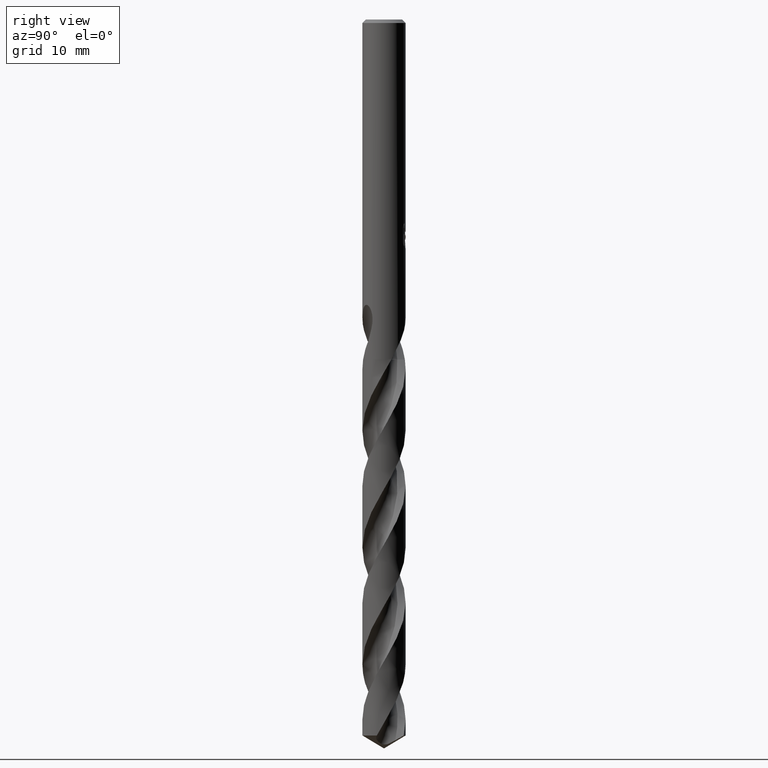
[diagram: clean part render]
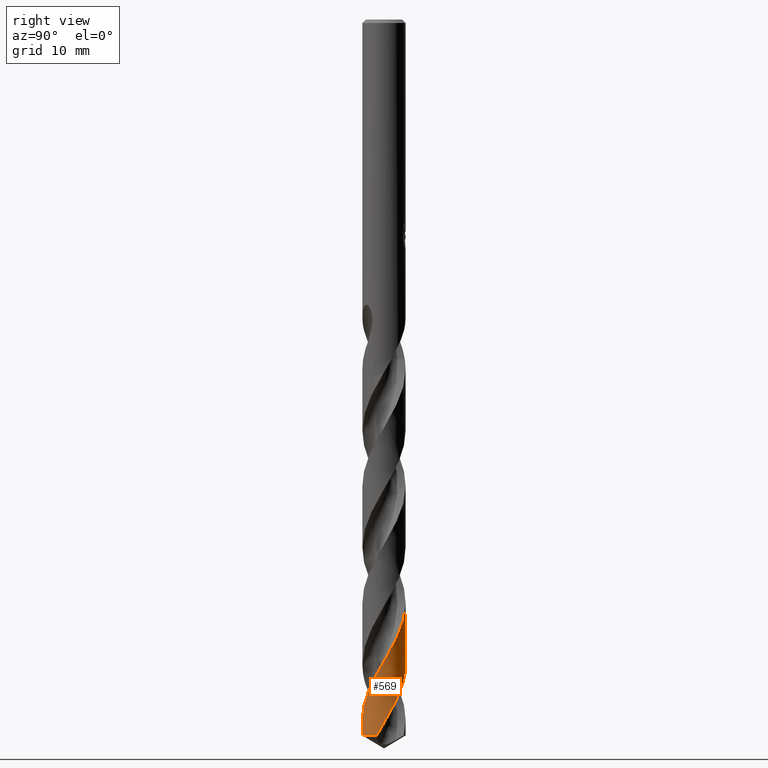
[diagram: same view with one face highlighted and labeled with its STEP entity id]
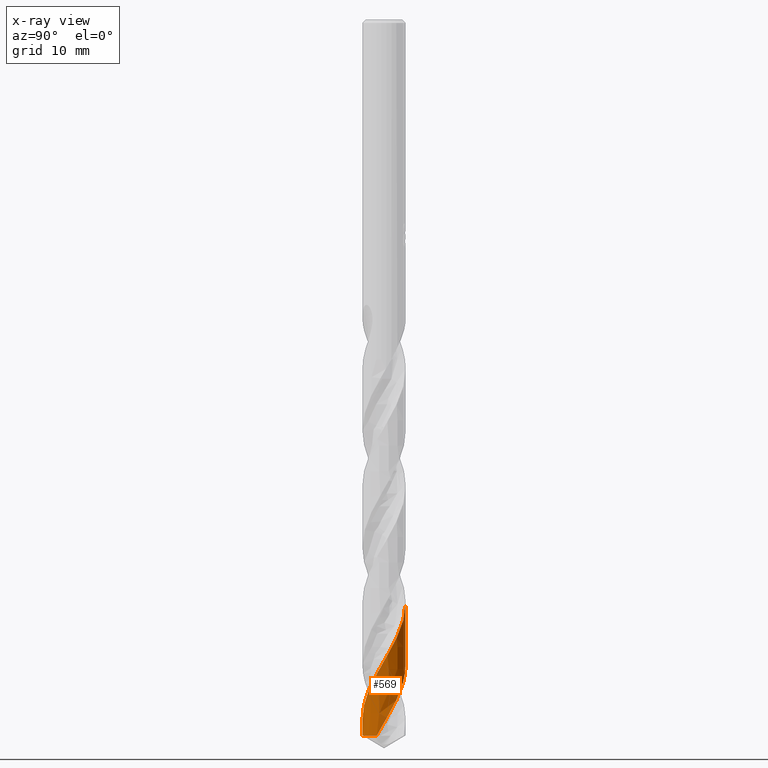
[diagram: x-ray of the same camera — body ghosted, the highlighted face saturated]
A machine part, right view. The second image highlights one B-rep face of the part: STEP entity #569.
The next image is the same camera in x-ray: the body ghosted, the highlighted face saturated — about 0% of this face is hidden behind the body in this view.
In plain terms, the highlighted conical surface has half-angle 0 deg.
Its self-contained STEP definition (entity closure, byte-faithful):
#297=EDGE_CURVE('',#449,#445,#836,.T.);
#347=EDGE_CURVE('',#399,#745,#891,.T.);
#399=VERTEX_POINT('',#948);
#445=VERTEX_POINT('',#1001);
#449=VERTEX_POINT('',#1005);
#495=EDGE_CURVE('',#449,#399,#1056,.T.);
#515=EDGE_CURVE('',#559,#745,#1079,.T.);
#559=VERTEX_POINT('',#1126);
#569=ADVANCED_FACE('',(#1136),#1137,.T.);
#605=EDGE_CURVE('',#559,#445,#1173,.T.);
#745=VERTEX_POINT('',#1325);
#836=B_SPLINE_CURVE_WITH_KNOTS('',3,(#1416,#1417,#1418,#1419,#1420,#1421,#1422,#1423,#1424,#1425,#1426,#1427,#1428,#1429,#1430,#1431,#1432,#1433,#1434,#1435,#1436,#1437,#1438,#1439,#1440,#1441,#1442,#1443,#1444,#1445,#1446,#1447,#1448,#1449,#1450,#1451,#1452,#1453,#1454,#1455,#1456,#1457,#1458,#1459,#1460,#1461,#1462,#1463,#1464,#1465,#1466,#1467,#1468,#1469,#1470,#1471,#1472,#1473,#1474,#1475,#1476,#1477,#1478,#1479,#1480,#1481,#1482,#1483,#1484,#1485,#1486,#1487,#1488,#1489,#1490,#1491,#1492,#1493,#1494,#1495,#1496,#1497,#1498,#1499,#1500,#1501,#1502,#1503,#1504,#1505,#1506,#1507,#1508,#1509,#1510,#1511,#1512,#1513,#1514,#1515,#1516,#1517,#1518,#1519,#1520,#1521,#1522,#1523,#1524,#1525,#1526,#1527,#1528,#1529,#1530,#1531,#1532,#1533,#1534,#1535,#1536,#1537,#1538,#1539,#1540,#1541,#1542,#1543,#1544,#1545,#1546,#1547,#1548,#1549,#1550,#1551,#1552,#1553,#1554,#1555,#1556,#1557,#1558,#1559),.UNSPECIFIED.,.F.,.F.,(4,2,2,2,2,2,2,2,2,2,2,2,2,2,2,2,2,2,2,2,2,2,2,2,2,2,2,2,2,2,2,2,2,2,2,2,2,2,2,2,2,2,2,2,2,2,2,2,2,2,2,2,2,2,2,2,2,2,2,2,2,2,2,2,2,2,2,2,2,2,2,4),(0.0,0.876116040993767,1.31109187851741,2.17221227104508,3.14388471818993,3.98175084664218,4.95334112541047,5.34108154182567,6.44273455704728,7.3055037147545,8.16721984664781,9.03145202170279,9.89325793211463,10.2610489207285,10.617515770084,12.0335996438863,12.380291765753,13.2506251567102,13.6867404491884,14.1194145274073,15.5468218495102,15.8876449758391,17.3560791439399,17.5017961841994,18.565969851226,19.433590779914,20.2400637461282,20.6759499429603,21.0643304414191,22.1990084732669,22.8963955313643,23.6637645560189,24.1503350697181,24.5520263071458,25.6307378967164,26.4999821585257,27.3656636331637,28.236447043743,29.1023432314611,29.9746360759997,30.8387259365157,31.7126074984112,32.5487405169182,32.9454907946239,33.338656048356,34.450810763582,35.1704138854551,36.658346808231,36.8049861248429,37.8879141341318,38.2745329260685,38.6523285539203,40.0354705797287,40.416244151164,41.7888865006707,42.1789198129637,43.3391103376038,44.0259498215276,44.8007890340576,45.235944924912,46.03538233339,46.7476286433306,47.9949532095645,48.9352171188026,49.2863911304343,50.5222957077088,51.1401910465104,51.4527082704027,51.6089334223101,51.6869549669427,51.7259365824883,51.7649345957086),.UNSPECIFIED.);
#891=LINE('',#2186,#2187);
#948=CARTESIAN_POINT('',(3.12274620224706E-016,-2.55,-84.4678054214797));
#1001=CARTESIAN_POINT('',(-7.26157705370439E-015,2.54998110362127,-76.0838968715577));
#1005=CARTESIAN_POINT('',(2.40472471601859,-0.848409712443987,-84.4678054214797));
#1056=CIRCLE('',#5935,2.55);
#1079=B_SPLINE_CURVE_WITH_KNOTS('',3,(#6061,#6062,#6063,#6064,#6065,#6066,#6067,#6068,#6069,#6070,#6071,#6072,#6073,#6074,#6075,#6076,#6077,#6078,#6079,#6080,#6081,#6082,#6083,#6084,#6085,#6086,#6087,#6088,#6089,#6090,#6091,#6092,#6093,#6094,#6095,#6096,#6097,#6098,#6099,#6100,#6101,#6102,#6103,#6104,#6105,#6106,#6107,#6108,#6109,#6110,#6111,#6112,#6113,#6114,#6115,#6116,#6117,#6118,#6119,#6120,#6121,#6122,#6123,#6124,#6125,#6126,#6127,#6128,#6129,#6130,#6131,#6132,#6133,#6134,#6135,#6136,#6137,#6138,#6139,#6140,#6141,#6142,#6143,#6144,#6145,#6146,#6147,#6148,#6149,#6150,#6151,#6152,#6153,#6154,#6155,#6156,#6157,#6158,#6159,#6160,#6161,#6162,#6163,#6164,#6165,#6166,#6167,#6168,#6169,#6170,#6171,#6172,#6173,#6174,#6175,#6176,#6177,#6178,#6179,#6180,#6181,#6182,#6183,#6184,#6185,#6186),.UNSPECIFIED.,.F.,.F.,(4,2,2,2,2,2,2,2,2,2,2,2,2,2,2,2,2,2,2,2,2,2,2,2,2,2,2,2,2,2,2,2,2,2,2,2,2,2,2,2,2,2,2,2,2,2,2,2,2,2,2,2,2,2,2,2,2,2,2,2,2,2,4),(0.0,0.0306110248028829,0.602073985706346,1.51849139507712,2.29795400160564,2.96630505725285,4.25768011506694,4.4770894326917,6.05637747270346,6.15922037400864,7.65932839369511,8.13973283909698,9.20122349906755,9.84685680363498,10.8494675752767,11.6298686362992,12.7031976930521,13.7295088994042,14.6968179048057,14.9173302837672,16.5106462493135,16.6131330381006,18.1238920480967,18.5894015305588,19.6561444095276,20.2904735208778,21.2936985975392,22.0706498086217,23.1473589523201,24.1722377947309,25.1390425617313,25.3581838683691,26.9500039154006,27.0523616422054,28.5653463163775,29.0281227405924,30.1046936401403,31.1289135078367,32.0951958359042,32.3140958602575,33.9061137746095,34.0082494299029,35.5229398361072,35.9831995969831,37.0625391454362,37.6728891989963,38.5758751320517,39.5449630279457,40.8128155392398,41.025211639974,41.8573628750507,42.3484483669402,42.8897056618765,43.8961251403428,44.6565969793751,45.7178559670194,46.3604893559337,47.3580472705361,47.6018985877734,48.0536145155955,48.8542978327662,50.065776955514,51.2758336616005),.UNSPECIFIED.);
#1126=CARTESIAN_POINT('',(6.55815330237238E-012,2.54996472678771,-68.8178552265747));
#1136=FACE_OUTER_BOUND('',#6390,.T.);
#1137=CONICAL_SURFACE('',#6391,2.54995,2.25388655242409E-006);
#1173=LINE('',#6628,#6629);
#1325=CARTESIAN_POINT('',(2.0584227163247E-014,-2.54999580361675,-82.6059622653028));
#1416=CARTESIAN_POINT('',(2.40472471601859,-0.848409712443992,-84.4678054214797));
#1417=CARTESIAN_POINT('',(2.4532386810248,-0.710900460394223,-84.2147754003168));
#1418=CARTESIAN_POINT('',(2.49002509025799,-0.569051693800341,-83.9632878887699));
#1419=CARTESIAN_POINT('',(2.52657791479786,-0.352428711000677,-83.5856123029491));
#1420=CARTESIAN_POINT('',(2.53561618275435,-0.280084944590474,-83.4604903092121));
#1421=CARTESIAN_POINT('',(2.55327854816494,-0.0637038394174159,-83.0870997575142));
#1422=CARTESIAN_POINT('',(2.55279907624535,0.0807424752273654,-82.8382276158718));
#1423=CARTESIAN_POINT('',(2.52576227269383,0.386666052372392,-82.3102280043488));
#1424=CARTESIAN_POINT('',(2.49593476124341,0.547012403429,-82.0320809766597));
#1425=CARTESIAN_POINT('',(2.41241280659725,0.838087440897922,-81.5106287477022));
#1426=CARTESIAN_POINT('',(2.36267830539077,0.969504330770324,-81.2681377546791));
#1427=CARTESIAN_POINT('',(2.23228080021877,1.24334318606825,-80.7465894013487));
#1428=CARTESIAN_POINT('',(2.14838917644426,1.38322649097756,-80.4683943601016));
#1429=CARTESIAN_POINT('',(2.01331910343362,1.56627144600696,-80.0764349779887));
#1430=CARTESIAN_POINT('',(1.97287729556282,1.61690909944353,-79.9643825961267));
#1431=CARTESIAN_POINT('',(1.81040525319798,1.80519056402204,-79.5352758482351));
#1432=CARTESIAN_POINT('',(1.67538940944156,1.93119505911948,-79.2206451677884));
#1433=CARTESIAN_POINT('',(1.41211616468274,2.12819577740997,-78.6553834232116));
#1434=CARTESIAN_POINT('',(1.28950145032511,2.20463357908687,-78.4061237691297));
#1435=CARTESIAN_POINT('',(1.03289522984958,2.33587119156247,-77.9099170519858));
#1436=CARTESIAN_POINT('',(0.899284596377507,2.39050135644141,-77.6633051022566));
#1437=CARTESIAN_POINT('',(0.623688132752266,2.47675967697949,-77.1669495388463));
#1438=CARTESIAN_POINT('',(0.482451546661361,2.50808428833626,-76.9174299611575));
#1439=CARTESIAN_POINT('',(0.196747994510775,2.54645125675874,-76.4210670173414));
#1440=CARTESIAN_POINT('',(0.0526504781526859,2.55350781254899,-76.174573176053));
#1441=CARTESIAN_POINT('',(-0.152838145122059,2.54613901504033,-75.8211911993042));
#1442=CARTESIAN_POINT('',(-0.214121894352937,2.54171478614789,-75.7155511974617));
#1443=CARTESIAN_POINT('',(-0.33421216894171,2.52868225075577,-75.5072154439243));
#1444=CARTESIAN_POINT('',(-0.393003986489377,2.52021430882074,-75.4044820365158));
#1445=CARTESIAN_POINT('',(-0.684040160476999,2.46785105186006,-74.8944904047045));
#1446=CARTESIAN_POINT('',(-0.909476550013433,2.3939436104179,-74.4928188154568));
#1447=CARTESIAN_POINT('',(-1.17339331213147,2.2647004100592,-73.9858160094437));
#1448=CARTESIAN_POINT('',(-1.22437523157237,2.23755037882282,-73.8859198016449));
#1449=CARTESIAN_POINT('',(-1.40030410323113,2.13602957739435,-73.535649593397));
#1450=CARTESIAN_POINT('',(-1.51984669238653,2.05271910547606,-73.2865531485259));
#1451=CARTESIAN_POINT('',(-1.68787030709777,1.9127960398389,-72.9109863067222));
#1452=CARTESIAN_POINT('',(-1.74186000463285,1.86375729421942,-72.7857444044991));
#1453=CARTESIAN_POINT('',(-1.84496407230394,1.76172894830975,-72.5357861996346));
#1454=CARTESIAN_POINT('',(-1.89405397901246,1.70883820605258,-72.4109934028619));
#1455=CARTESIAN_POINT('',(-2.09526134572711,1.47272099439977,-71.8760063895225));
#1456=CARTESIAN_POINT('',(-2.22343580403524,1.27092476659151,-71.4713485568897));
#1457=CARTESIAN_POINT('',(-2.34525719302661,1.00266563229554,-70.962919804167));
#1458=CARTESIAN_POINT('',(-2.36699595441618,0.950216545066971,-70.8647446744845));
#1459=CARTESIAN_POINT('',(-2.47324352718843,0.667462209232329,-70.3439451049161));
#1460=CARTESIAN_POINT('',(-2.5258479048837,0.426984946145117,-69.9276515818826));
#1461=CARTESIAN_POINT('',(-2.54514090067931,0.158666555366492,-69.4630067431907));
#1462=CARTESIAN_POINT('',(-2.54653538412849,0.13444613005349,-69.4210513513188));
#1463=CARTESIAN_POINT('',(-2.55525557157086,-0.067247077630529,-69.0724345774812));
#1464=CARTESIAN_POINT('',(-2.54439134733098,-0.245242614897038,-68.7683037527894));
#1465=CARTESIAN_POINT('',(-2.49098691504064,-0.564272246786445,-68.2125640321992));
#1466=CARTESIAN_POINT('',(-2.45482755397482,-0.705053602535103,-67.9621269551545));
#1467=CARTESIAN_POINT('',(-2.36259485985878,-0.968796885728333,-67.4806248487244));
#1468=CARTESIAN_POINT('',(-2.30812569176559,-1.09227286190446,-67.2497810207445));
#1469=CARTESIAN_POINT('',(-2.20942204530931,-1.27517429283323,-66.8927986441361));
#1470=CARTESIAN_POINT('',(-2.17209683507086,-1.3377530968861,-66.767678532583));
#1471=CARTESIAN_POINT('',(-2.09665041732777,-1.45277381844983,-66.5306368152414));
#1472=CARTESIAN_POINT('',(-2.05910799143696,-1.50550686822112,-66.4186997437579));
#1473=CARTESIAN_POINT('',(-1.9042456361639,-1.70641429264692,-65.981022736512));
#1474=CARTESIAN_POINT('',(-1.77248563745465,-1.84294708579919,-65.6579537800992));
#1475=CARTESIAN_POINT('',(-1.53696633489635,-2.03802947439231,-65.1321097240815));
#1476=CARTESIAN_POINT('',(-1.44246983020122,-2.10595043034292,-64.931240984793));
#1477=CARTESIAN_POINT('',(-1.23529266096229,-2.23442003334736,-64.5110149517685));
#1478=CARTESIAN_POINT('',(-1.12171412013592,-2.29356154128819,-64.291822073748));
#1479=CARTESIAN_POINT('',(-0.929358882729272,-2.37595229195995,-63.9324636235773));
#1480=CARTESIAN_POINT('',(-0.853321589787818,-2.40430175319518,-63.7932117429387));
#1481=CARTESIAN_POINT('',(-0.712453749021909,-2.44931451023442,-63.5384484412624));
#1482=CARTESIAN_POINT('',(-0.648078296563633,-2.46712414423728,-63.4229717413454));
#1483=CARTESIAN_POINT('',(-0.408773557653087,-2.5233392270084,-62.9987848626311));
#1484=CARTESIAN_POINT('',(-0.230364773395739,-2.54586711054035,-62.6922621338002));
#1485=CARTESIAN_POINT('',(0.0939027703588288,-2.55232672932321,-62.1348339469558));
#1486=CARTESIAN_POINT('',(0.238387285165763,-2.54288629765584,-61.8851238962532));
#1487=CARTESIAN_POINT('',(0.523407613845133,-2.49979346059872,-61.3886840526278));
#1488=CARTESIAN_POINT('',(0.663643662865771,-2.46628416574482,-61.1423139611416));
#1489=CARTESIAN_POINT('',(0.937976645410595,-2.37558832486354,-60.6457710325011));
#1490=CARTESIAN_POINT('',(1.07123298573445,-2.3185292926051,-60.3958322410914));
#1491=CARTESIAN_POINT('',(1.32567600812914,-2.18299375158226,-59.8992672226385));
#1492=CARTESIAN_POINT('',(1.44669320730439,-2.10476191382086,-59.6530226348176));
#1493=CARTESIAN_POINT('',(1.6752639523,-1.92788389933655,-59.1563971802712));
#1494=CARTESIAN_POINT('',(1.78203215183472,-1.82961549051097,-58.9062642280375));
#1495=CARTESIAN_POINT('',(1.97659772139744,-1.61734210055116,-58.4102103953696));
#1496=CARTESIAN_POINT('',(2.06442569862409,-1.5036465574269,-58.1646843966414));
#1497=CARTESIAN_POINT('',(2.22103287298956,-1.26106440173032,-57.6685792590081));
#1498=CARTESIAN_POINT('',(2.28910855997045,-1.13275048074143,-57.4182607396593));
#1499=CARTESIAN_POINT('',(2.40014160217653,-0.872172732061281,-56.930215011551));
#1500=CARTESIAN_POINT('',(2.4440160430249,-0.740425004403602,-56.6927861963137));
#1501=CARTESIAN_POINT('',(2.49261874345611,-0.541632390850395,-56.3412315412305));
#1502=CARTESIAN_POINT('',(2.50575724738831,-0.477151161676348,-56.2281876673911));
#1503=CARTESIAN_POINT('',(2.52690917495241,-0.348055134060328,-56.0027688324689));
#1504=CARTESIAN_POINT('',(2.53495665911914,-0.283526684144182,-55.8903202956105));
#1505=CARTESIAN_POINT('',(2.55629982638175,-0.0356910657832676,-55.4610907372662));
#1506=CARTESIAN_POINT('',(2.55224850863403,0.148778305710132,-55.1467358255261));
#1507=CARTESIAN_POINT('',(2.51280310344889,0.44965379225824,-54.6250792420004));
#1508=CARTESIAN_POINT('',(2.48905684404368,0.566447093824022,-54.4194537344146));
#1509=CARTESIAN_POINT('',(2.39174148364488,0.917634822445658,-53.791122802462));
#1510=CARTESIAN_POINT('',(2.29237210888609,1.1433666148949,-53.3740481922531));
#1511=CARTESIAN_POINT('',(2.14963600186759,1.37178211302277,-52.9087824751));
#1512=CARTESIAN_POINT('',(2.13655138880577,1.3920742912702,-52.8670285590128));
#1513=CARTESIAN_POINT('',(2.0241435289723,1.56106693593611,-52.5165592100388));
#1514=CARTESIAN_POINT('',(1.90961749890863,1.69931290248887,-52.2104347688493));
#1515=CARTESIAN_POINT('',(1.73544402815571,1.86934728611773,-51.7922211937236));
#1516=CARTESIAN_POINT('',(1.68800874896073,1.91228404981403,-51.6822713434605));
#1517=CARTESIAN_POINT('',(1.59125556931801,1.99347006652426,-51.4645473295828));
#1518=CARTESIAN_POINT('',(1.54205694729314,2.03176457536342,-51.3567190562544));
#1519=CARTESIAN_POINT('',(1.30633679869652,2.20175029049351,-50.8553652186638));
#1520=CARTESIAN_POINT('',(1.10412809161793,2.30979064919969,-50.466790805664));
#1521=CARTESIAN_POINT('',(0.831291353059098,2.41143284072693,-49.9649157633622));
#1522=CARTESIAN_POINT('',(0.77169872409261,2.43115663508028,-49.8563491732409));
#1523=CARTESIAN_POINT('',(0.494153354998057,2.51179245458498,-49.3577101967778));
#1524=CARTESIAN_POINT('',(0.269452732171157,2.545725331726,-48.9724421237366));
#1525=CARTESIAN_POINT('',(-0.0211609715298172,2.55064203249824,-48.4715320643955));
#1526=CARTESIAN_POINT('',(-0.0853793256354447,2.54929728806812,-48.3604520351222));
#1527=CARTESIAN_POINT('',(-0.340099943444027,2.53433982172477,-47.9202093462496));
#1528=CARTESIAN_POINT('',(-0.529044324132785,2.50176174533095,-47.5938260921823));
#1529=CARTESIAN_POINT('',(-0.821565436241674,2.41659592309235,-47.0699083759034));
#1530=CARTESIAN_POINT('',(-0.927945049154141,2.37776065326036,-46.874405644572));
#1531=CARTESIAN_POINT('',(-1.14779986158173,2.28053887642081,-46.4599910642844));
#1532=CARTESIAN_POINT('',(-1.26046772990333,2.22027235688089,-46.2412587923522));
#1533=CARTESIAN_POINT('',(-1.42884750021558,2.11319693273264,-45.8985700298963));
#1534=CARTESIAN_POINT('',(-1.48769398533692,2.07218544007213,-45.7754578537114));
#1535=CARTESIAN_POINT('',(-1.64938150447457,1.94907876283829,-45.4255833119315));
#1536=CARTESIAN_POINT('',(-1.74774265025712,1.86139621308389,-45.1980954022262));
#1537=CARTESIAN_POINT('',(-1.92028977519741,1.68175621333973,-44.7696344644597));
#1538=CARTESIAN_POINT('',(-1.99567567660071,1.59157610079635,-44.5684966313045));
#1539=CARTESIAN_POINT('',(-2.18531465575014,1.32994028015386,-44.0132889148575));
#1540=CARTESIAN_POINT('',(-2.28536800705351,1.14952502761946,-43.6586253573558));
#1541=CARTESIAN_POINT('',(-2.4209990852489,0.815361915083321,-43.0387939958776));
#1542=CARTESIAN_POINT('',(-2.46600883799987,0.666883533267958,-42.7738786191654));
#1543=CARTESIAN_POINT('',(-2.50894084688096,0.458876815887821,-42.4076938146289));
#1544=CARTESIAN_POINT('',(-2.51868503687809,0.401971871770063,-42.3079040530698));
#1545=CARTESIAN_POINT('',(-2.5539938646654,0.143171558471098,-41.8577412624356));
#1546=CARTESIAN_POINT('',(-2.55727099420712,-0.0608431071008394,-41.511293638643));
#1547=CARTESIAN_POINT('',(-2.52581110300024,-0.364155468127701,-40.9856525500252));
#1548=CARTESIAN_POINT('',(-2.50935371723795,-0.464135824827021,-40.8098361189199));
#1549=CARTESIAN_POINT('',(-2.47564305714888,-0.613038593611845,-40.5463391879914));
#1550=CARTESIAN_POINT('',(-2.46278828212811,-0.662813743000996,-40.4579145298509));
#1551=CARTESIAN_POINT('',(-2.44120343878329,-0.737008548775577,-40.3253712653669));
#1552=CARTESIAN_POINT('',(-2.43362680215999,-0.7616554904772,-40.2812172698858));
#1553=CARTESIAN_POINT('',(-2.42169204149801,-0.798476800953712,-40.2150348172184));
#1554=CARTESIAN_POINT('',(-2.41762156720078,-0.810717982046423,-40.1929960563352));
#1555=CARTESIAN_POINT('',(-2.41137443892189,-0.829038964469121,-40.1599522789228));
#1556=CARTESIAN_POINT('',(-2.40926933672859,-0.835136800251802,-40.1489443503188));
#1557=CARTESIAN_POINT('',(-2.40501071213083,-0.84732252921953,-40.1269259909009));
#1558=CARTESIAN_POINT('',(-2.40285902794588,-0.85340509114145,-40.1159263466438));
#1559=CARTESIAN_POINT('',(-2.40068594128376,-0.859474885059428,-40.1049350620338));
#2186=CARTESIAN_POINT('',(3.12241411148327E-016,-2.54995,-62.2839027107399));
#2187=VECTOR('',#12641,1.0);
#5935=AXIS2_PLACEMENT_3D('',#12838,#12839,#12840);
#6061=CARTESIAN_POINT('',(-0.65341679781216,2.46475892348229,-40.1045716875792));
#6062=CARTESIAN_POINT('',(-0.648458361632991,2.46607344400291,-40.1133921710479));
#6063=CARTESIAN_POINT('',(-0.643495828340949,2.46737303524251,-40.1222116584224));
#6064=CARTESIAN_POINT('',(-0.545822364642474,2.49263713870363,-40.2956598554575));
#6065=CARTESIAN_POINT('',(-0.451840487163871,2.5113746776104,-40.4600238045892));
#6066=CARTESIAN_POINT('',(-0.204993308700517,2.54628254242042,-40.888665057937));
#6067=CARTESIAN_POINT('',(-0.0514680199460076,2.55398547833597,-41.1526343248684));
#6068=CARTESIAN_POINT('',(0.231922677289231,2.54267817433136,-41.6414231428311));
#6069=CARTESIAN_POINT('',(0.361679266635818,2.52749705485492,-41.8657154814551));
#6070=CARTESIAN_POINT('',(0.599651658035964,2.48091985876965,-42.2827962743044));
#6071=CARTESIAN_POINT('',(0.70793566487888,2.4522157125642,-42.4749252629138));
#6072=CARTESIAN_POINT('',(1.01883021184261,2.34749667878688,-43.0396279405808));
#6073=CARTESIAN_POINT('',(1.21414642103409,2.25269856240043,-43.4103329002631));
#6074=CARTESIAN_POINT('',(1.42593329450892,2.11426052035174,-43.8456145995378));
#6075=CARTESIAN_POINT('',(1.456244544939,2.0934982377249,-43.9088077026734));
#6076=CARTESIAN_POINT('',(1.70094544282121,1.91800134020056,-44.4271656665863));
#6077=CARTESIAN_POINT('',(1.89063285309896,1.73134505974469,-44.8801123386739));
#6078=CARTESIAN_POINT('',(2.05849049392861,1.5049798230434,-45.3648346305514));
#6079=CARTESIAN_POINT('',(2.06861099271073,1.49103863509053,-45.3944639627523));
#6080=CARTESIAN_POINT('',(2.22414392608639,1.27215747077896,-45.8564492856804));
#6081=CARTESIAN_POINT('',(2.33866742504613,1.04684588347302,-46.2873099627802));
#6082=CARTESIAN_POINT('',(2.44388945698712,0.732087901775787,-46.8581779875544));
#6083=CARTESIAN_POINT('',(2.46577208758879,0.654605459201256,-46.9965329306637));
#6084=CARTESIAN_POINT('',(2.5241195183453,0.403098042426034,-47.4411200605081));
#6085=CARTESIAN_POINT('',(2.54608990862734,0.226153565967311,-47.7465631750759));
#6086=CARTESIAN_POINT('',(2.55151034338653,-0.0598677814278978,-48.2386940212721));
#6087=CARTESIAN_POINT('',(2.54667351107565,-0.16802237436684,-48.4244671120122));
#6088=CARTESIAN_POINT('',(2.5168482513115,-0.442449056102212,-48.8997584317135));
#6089=CARTESIAN_POINT('',(2.4822542443105,-0.607238300588726,-49.188414434435));
#6090=CARTESIAN_POINT('',(2.39232431387747,-0.8921816772695,-49.7024967689706));
#6091=CARTESIAN_POINT('',(2.34344143418987,-1.01364130306008,-49.9269312217318));
#6092=CARTESIAN_POINT('',(2.20576215023867,-1.29191238782971,-50.4615463066468));
#6093=CARTESIAN_POINT('',(2.10919502009655,-1.4442210080275,-50.7704327288788));
#6094=CARTESIAN_POINT('',(1.89042391455556,-1.71988629800994,-51.3758440658198));
#6095=CARTESIAN_POINT('',(1.77016633987451,-1.84341514263623,-51.6710489371554));
#6096=CARTESIAN_POINT('',(1.51432427132389,-2.05795953082557,-52.2460535455088));
#6097=CARTESIAN_POINT('',(1.38049833841782,-2.15003455009721,-52.5242827252449));
#6098=CARTESIAN_POINT('',(1.2064634559572,-2.24676411679465,-52.8667654754489));
#6099=CARTESIAN_POINT('',(1.17377636088141,-2.2640123594358,-52.930318791896));
#6100=CARTESIAN_POINT('',(0.901940997414187,-2.39998583533077,-53.4534180259683));
#6101=CARTESIAN_POINT('',(0.64576497884488,-2.48122879411067,-53.9107079933567));
#6102=CARTESIAN_POINT('',(0.364651886303538,-2.52378260304486,-54.3997627858383));
#6103=CARTESIAN_POINT('',(0.347640009237077,-2.52618216054347,-54.4293136455153));
#6104=CARTESIAN_POINT('',(0.0794855954314274,-2.56124600315563,-54.8946482048752));
#6105=CARTESIAN_POINT('',(-0.175229293382722,-2.55649278889368,-55.3288292887556));
#6106=CARTESIAN_POINT('',(-0.502031265719164,-2.50124592872265,-55.8989185872751));
#6107=CARTESIAN_POINT('',(-0.578337330757092,-2.4847101802932,-56.0331014913778));
#6108=CARTESIAN_POINT('',(-0.826530820066198,-2.41888032053661,-56.4752548322526));
#6109=CARTESIAN_POINT('',(-0.994095412448091,-2.35498660315752,-56.7824361370753));
#6110=CARTESIAN_POINT('',(-1.24851373426255,-2.22591959808318,-57.273206675578));
#6111=CARTESIAN_POINT('',(-1.34024657448146,-2.17191901128913,-57.4558817271618));
#6112=CARTESIAN_POINT('',(-1.56761453524386,-2.01818069705022,-57.9284632433424));
#6113=CARTESIAN_POINT('',(-1.69729949984408,-1.91041402987779,-58.2175217140481));
#6114=CARTESIAN_POINT('',(-1.90695384435994,-1.69785464112952,-58.7311903874973));
#6115=CARTESIAN_POINT('',(-1.99118007048066,-1.59823914838297,-58.9548128889829));
#6116=CARTESIAN_POINT('',(-2.17305654817533,-1.3463316369545,-59.4898264199661));
#6117=CARTESIAN_POINT('',(-2.26291282432843,-1.18914415523903,-59.7999181111072));
#6118=CARTESIAN_POINT('',(-2.40444630221102,-0.866266781440488,-60.406363263463));
#6119=CARTESIAN_POINT('',(-2.4573408602457,-0.702291186658956,-60.7013943801187));
#6120=CARTESIAN_POINT('',(-2.52729473358533,-0.375866137044713,-61.2762879169322));
#6121=CARTESIAN_POINT('',(-2.54608429189861,-0.214469563548825,-61.5545847904062));
#6122=CARTESIAN_POINT('',(-2.55016666649505,-0.0155578152370015,-61.8967938646791));
#6123=CARTESIAN_POINT('',(-2.55012596949284,0.0212000153309759,-61.9600017159421));
#6124=CARTESIAN_POINT('',(-2.54322620027902,0.324826509529911,-62.4826855349611));
#6125=CARTESIAN_POINT('',(-2.49527707701183,0.589222154517986,-62.9399058843121));
#6126=CARTESIAN_POINT('',(-2.40148453566472,0.85756932991912,-63.4288773646344));
#6127=CARTESIAN_POINT('',(-2.39565520797819,0.873721643710825,-63.4584143537941));
#6128=CARTESIAN_POINT('',(-2.30108993039291,1.12768677029722,-63.9247225755808));
#6129=CARTESIAN_POINT('',(-2.17745068247882,1.35109727060645,-64.3598708106882));
#6130=CARTESIAN_POINT('',(-1.97554724541482,1.61416282344481,-64.9302624908916));
#6131=CARTESIAN_POINT('',(-1.92548620788985,1.67356017846999,-65.0637665046817));
#6132=CARTESIAN_POINT('',(-1.75027758697607,1.86317213287606,-65.5083150185067));
#6133=CARTESIAN_POINT('',(-1.61395092726012,1.98244776820768,-65.8185427147781));
#6134=CARTESIAN_POINT('',(-1.3254547848891,2.18518078280798,-66.4251038059158));
#6135=CARTESIAN_POINT('',(-1.17521865466229,2.26950729101515,-66.720114794223));
#6136=CARTESIAN_POINT('',(-0.86912896626941,2.40274424519097,-67.2949954719187));
#6137=CARTESIAN_POINT('',(-0.714648731392485,2.45313893427572,-67.573300455332));
#6138=CARTESIAN_POINT('',(-0.520501838613721,2.49654514674944,-67.9154845023992));
#6139=CARTESIAN_POINT('',(-0.484483614719335,2.50378419344435,-67.9786588915903));
#6140=CARTESIAN_POINT('',(-0.185345064082916,2.55721095053048,-68.5016291414368));
#6141=CARTESIAN_POINT('',(0.0834999436694622,2.56257433486622,-68.959160683551));
#6142=CARTESIAN_POINT('',(0.365260340699968,2.52372864346517,-69.4484044105296));
#6143=CARTESIAN_POINT('',(0.382219774428835,2.52121591283239,-69.4778942400033));
#6144=CARTESIAN_POINT('',(0.650277801454542,2.4787334256356,-69.9448977919452));
#6145=CARTESIAN_POINT('',(0.89414176684677,2.40157341197722,-70.3807703480298));
#6146=CARTESIAN_POINT('',(1.19194531637781,2.25556767496802,-70.9512522759025));
#6147=CARTESIAN_POINT('',(1.25973484207295,2.21841826713038,-71.0841085697687));
#6148=CARTESIAN_POINT('',(1.48043272909739,2.08410064833992,-71.5289825179105));
#6149=CARTESIAN_POINT('',(1.62474725089421,1.9736788904642,-71.840176118212));
#6150=CARTESIAN_POINT('',(1.83049237409984,1.7782477204352,-72.3283159561156));
#6151=CARTESIAN_POINT('',(1.90046004429585,1.70326395605387,-72.5043414678989));
#6152=CARTESIAN_POINT('',(2.06225253066095,1.50746514682505,-72.9416624239139));
#6153=CARTESIAN_POINT('',(2.14821063023037,1.38222769899582,-73.202306220827));
#6154=CARTESIAN_POINT('',(2.30232005299194,1.10823296215464,-73.7432396140582));
#6155=CARTESIAN_POINT('',(2.36831041743944,0.959133332694621,-74.02227557616));
#6156=CARTESIAN_POINT('',(2.48679834005478,0.60290623021283,-74.6687920106586));
#6157=CARTESIAN_POINT('',(2.52845149561467,0.393294361929632,-75.0337771282602));
#6158=CARTESIAN_POINT('',(2.54608814302046,0.145273971255228,-75.4614640036593));
#6159=CARTESIAN_POINT('',(2.54787097932913,0.109647402397775,-75.5228108434195));
#6160=CARTESIAN_POINT('',(2.55296139916436,-0.0656700774297488,-75.8246884173927));
#6161=CARTESIAN_POINT('',(2.54552952978169,-0.205442219749856,-76.0650666867526));
#6162=CARTESIAN_POINT('',(2.51556620405287,-0.425598277508963,-76.447520624348));
#6163=CARTESIAN_POINT('',(2.50048664437468,-0.506737162395034,-76.5893427116788));
#6164=CARTESIAN_POINT('',(2.46056190729929,-0.675511934186692,-76.8876648329143));
#6165=CARTESIAN_POINT('',(2.4349200047897,-0.762782208977104,-77.0438699331841));
#6166=CARTESIAN_POINT('',(2.34846367800244,-1.00781326509007,-77.4912529885017));
#6167=CARTESIAN_POINT('',(2.2765241761471,-1.16122647716203,-77.7817002102897));
#6168=CARTESIAN_POINT('',(2.12445097949819,-1.41614217904389,-78.2923758580979));
#6169=CARTESIAN_POINT('',(2.05086936047307,-1.52074626052181,-78.5116299449607));
#6170=CARTESIAN_POINT('',(1.85662876831292,-1.75701929786371,-79.0382964641265));
#6171=CARTESIAN_POINT('',(1.72931047002401,-1.88247792850147,-79.3444801847221));
#6172=CARTESIAN_POINT('',(1.50547807233678,-2.06098075732464,-79.8369853045194));
#6173=CARTESIAN_POINT('',(1.41689828843124,-2.12285032302828,-80.0223930145792));
#6174=CARTESIAN_POINT('',(1.181551994057,-2.26593251972503,-80.4966187649357));
#6175=CARTESIAN_POINT('',(1.03013528132374,-2.33866991893015,-80.7845780006401));
#6176=CARTESIAN_POINT('',(0.834129849866097,-2.4100556377778,-81.1434492687321));
#6177=CARTESIAN_POINT('',(0.795292434153564,-2.42314922168849,-81.2139258645465));
#6178=CARTESIAN_POINT('',(0.683649435279322,-2.45781445425918,-81.4149904362202));
#6179=CARTESIAN_POINT('',(0.610207564519768,-2.47706866058212,-81.5454243371564));
#6180=CARTESIAN_POINT('',(0.404559749056522,-2.52128672136201,-81.9075746822818));
#6181=CARTESIAN_POINT('',(0.271042131716292,-2.53911373829844,-82.1389699473267));
#6182=CARTESIAN_POINT('',(-0.0664676302618989,-2.55723957887238,-82.7208325299735));
#6183=CARTESIAN_POINT('',(-0.270265713776932,-2.54378833044947,-83.0695691481023));
#6184=CARTESIAN_POINT('',(-0.670080640267919,-2.4687659684139,-83.7697701048693));
#6185=CARTESIAN_POINT('',(-0.864713945429022,-2.40751399562222,-84.1179992307428));
#6186=CARTESIAN_POINT('',(-1.05003862883415,-2.32377255297417,-84.4678054214797));
#6390=EDGE_LOOP('',(#12932,#12933,#12934,#12935,#12936));
#6391=AXIS2_PLACEMENT_3D('',#12937,#12938,#12939);
#6628=CARTESIAN_POINT('',(-3.12295583237547E-016,2.54995,-62.2839027107399));
#6629=VECTOR('',#12950,1.0);
#12641=DIRECTION('',(-2.76012379289101E-022,2.25388655242218E-006,0.99999999999746));
#12838=CARTESIAN_POINT('',(0.0,0.0,-84.4678054214797));
#12839=DIRECTION('',(0.0,0.0,-1.0));
#12840=DIRECTION('',(0.0,1.0,0.0));
#12932=ORIENTED_EDGE('',*,*,#605,.F.);
#12933=ORIENTED_EDGE('',*,*,#515,.T.);
#12934=ORIENTED_EDGE('',*,*,#347,.F.);
#12935=ORIENTED_EDGE('',*,*,#495,.F.);
#12936=ORIENTED_EDGE('',*,*,#297,.T.);
#12937=CARTESIAN_POINT('',(0.0,0.0,-62.2839027107399));
#12938=DIRECTION('',(0.0,-0.0,-1.0));
#12939=DIRECTION('',(0.0,1.0,0.0));
#12950=DIRECTION('',(-2.76012379289101E-022,2.25388655242218E-006,-0.99999999999746));